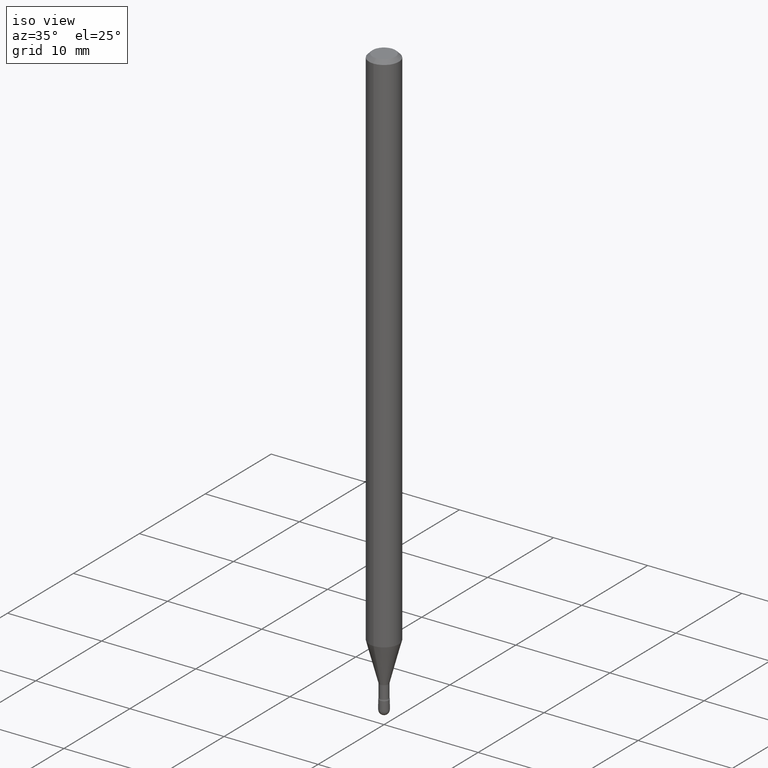
[diagram: clean part render]
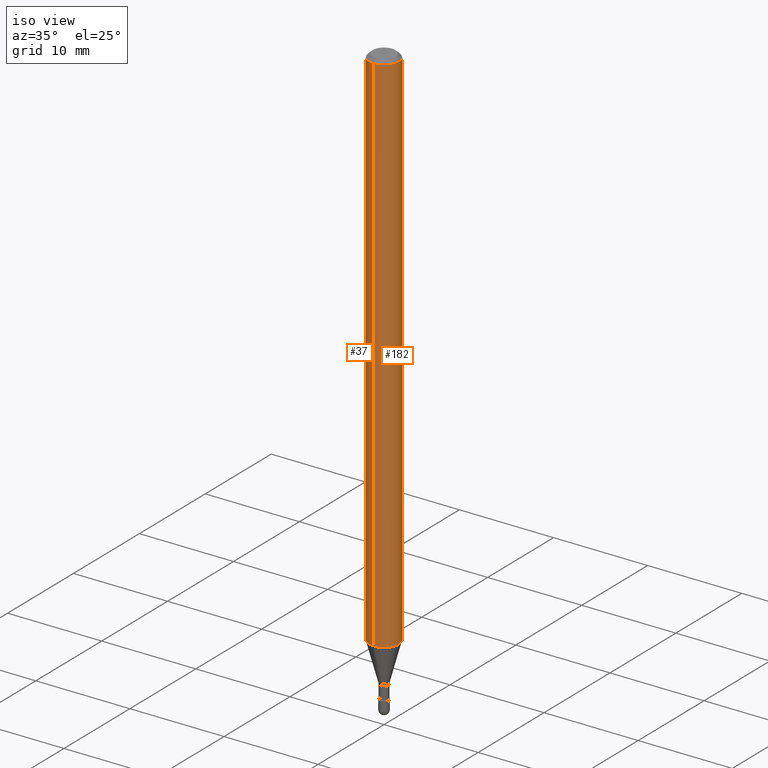
[diagram: same view with one multi-face feature highlighted, each face labeled with its STEP entity id]
A machine part, iso view. The highlighted faces form ONE feature: a constant-radius fillet chain: 2 tangent blend faces with common blend radius 1.5875 mm. The faces share edges in the B-rep.
Their STEP definitions:
[1] entity #37 (Cylinder):
#9 = LINE ( 'NONE', #369, #323 ) ;
#20 = DIRECTION ( 'NONE',  ( -6.982962677686265922E-15, -1.000000000000000000, 3.491545961467180748E-15 ) ) ;
#25 = DIRECTION ( 'NONE',  ( -2.445423680447958986E-29, 3.491545961467181142E-15, 1.000000000000000000 ) ) ;
#31 = ORIENTED_EDGE ( 'NONE', *, *, #322, .F. ) ;
#35 = ORIENTED_EDGE ( 'NONE', *, *, #446, .T. ) ;
#37 = ADVANCED_FACE ( 'NONE', ( #289 ), #422, .T. ) ;
#51 = EDGE_LOOP ( 'NONE', ( #31, #35, #122, #240 ) ) ;
#60 = AXIS2_PLACEMENT_3D ( 'NONE', #390, #428, #217 ) ;
#68 = DIRECTION ( 'NONE',  ( -2.445423680447958986E-29, 3.491545961467181142E-15, 1.000000000000000000 ) ) ;
#104 = EDGE_CURVE ( 'NONE', #432, #380, #9, .T. ) ;
#122 = ORIENTED_EDGE ( 'NONE', *, *, #104, .T. ) ;
#143 = EDGE_CURVE ( 'NONE', #383, #380, #450, .T. ) ;
#150 = CARTESIAN_POINT ( 'NONE',  ( 3.668135520671958886E-31, -5.237318942200801172E-17, -0.01500000000000008271 ) ) ;
#166 = CARTESIAN_POINT ( 'NONE',  ( -4.364351673553912750E-16, -0.06250000000000005551, -0.01499999999999986587 ) ) ;
#217 = DIRECTION ( 'NONE',  ( -6.982962677686265922E-15, -1.000000000000000000, 4.370956789862821150E-15 ) ) ;
#240 = ORIENTED_EDGE ( 'NONE', *, *, #143, .F. ) ;
#241 = LINE ( 'NONE', #376, #473 ) ;
#265 = AXIS2_PLACEMENT_3D ( 'NONE', #293, #25, #20 ) ;
#279 = DIRECTION ( 'NONE',  ( -2.445423680447958986E-29, 3.491545961467181142E-15, 1.000000000000000000 ) ) ;
#289 = FACE_OUTER_BOUND ( 'NONE', #51, .T. ) ;
#293 = CARTESIAN_POINT ( 'NONE',  ( -1.169113584055446105E-44, 1.669184350826100908E-30, 4.780733988912460139E-16 ) ) ;
#322 = EDGE_CURVE ( 'NONE', #397, #383, #241, .T. ) ;
#323 = VECTOR ( 'NONE', #279, 39.37007874015748143 ) ;
#344 = CARTESIAN_POINT ( 'NONE',  ( 4.440892098501171462E-16, 0.06249999999999995143, -0.01500000000000030129 ) ) ;
#350 = DIRECTION ( 'NONE',  ( -2.445423680447958986E-29, 3.491545961467181142E-15, 1.000000000000000000 ) ) ;
#368 = CIRCLE ( 'NONE', #60, 0.06250000000000000000 ) ;
#369 = CARTESIAN_POINT ( 'NONE',  ( -4.364351673553916201E-16, -0.06250000000000000000, 6.962950214829448106E-16 ) ) ;
#376 = CARTESIAN_POINT ( 'NONE',  ( 4.440892098500625669E-16, 0.06250000000000000000, 2.598517762995472172E-16 ) ) ;
#380 = VERTEX_POINT ( 'NONE', #166 ) ;
#383 = VERTEX_POINT ( 'NONE', #344 ) ;
#390 = CARTESIAN_POINT ( 'NONE',  ( 5.421282694548172872E-29, -7.740440991662511567E-15, -2.216909379709240291 ) ) ;
#397 = VERTEX_POINT ( 'NONE', #513 ) ;
#422 = CYLINDRICAL_SURFACE ( 'NONE', #265, 0.06250000000000000000 ) ;
#428 = DIRECTION ( 'NONE',  ( -2.445423680447958986E-29, 3.491545961467181142E-15, 1.000000000000000000 ) ) ;
#432 = VERTEX_POINT ( 'NONE', #436 ) ;
#436 = CARTESIAN_POINT ( 'NONE',  ( -4.364351673553375831E-16, -0.06250000000000775768, -2.216909379709239847 ) ) ;
#446 = EDGE_CURVE ( 'NONE', #397, #432, #368, .T. ) ;
#450 = CIRCLE ( 'NONE', #551, 0.06250000000000000000 ) ;
#453 = DIRECTION ( 'NONE',  ( -6.982962677686265922E-15, -1.000000000000000000, 3.483106191921935554E-15 ) ) ;
#473 = VECTOR ( 'NONE', #350, 39.37007874015748143 ) ;
#513 = CARTESIAN_POINT ( 'NONE',  ( 4.440892098501165545E-16, 0.06249999999999224232, -2.216909379709240735 ) ) ;
#551 = AXIS2_PLACEMENT_3D ( 'NONE', #150, #68, #453 ) ;
[2] entity #182 (Cylinder):
#9 = LINE ( 'NONE', #369, #323 ) ;
#22 = CARTESIAN_POINT ( 'NONE',  ( -1.169113584055446105E-44, 1.669184350826100908E-30, 4.780733988912460139E-16 ) ) ;
#36 = CARTESIAN_POINT ( 'NONE',  ( 3.668135520671958886E-31, -5.237318942200801172E-17, -0.01500000000000008271 ) ) ;
#49 = ORIENTED_EDGE ( 'NONE', *, *, #357, .T. ) ;
#104 = EDGE_CURVE ( 'NONE', #432, #380, #9, .T. ) ;
#115 = AXIS2_PLACEMENT_3D ( 'NONE', #506, #306, #444 ) ;
#131 = CIRCLE ( 'NONE', #203, 0.06250000000000000000 ) ;
#139 = AXIS2_PLACEMENT_3D ( 'NONE', #22, #499, #452 ) ;
#154 = ORIENTED_EDGE ( 'NONE', *, *, #322, .T. ) ;
#165 = ORIENTED_EDGE ( 'NONE', *, *, #104, .F. ) ;
#166 = CARTESIAN_POINT ( 'NONE',  ( -4.364351673553912750E-16, -0.06250000000000005551, -0.01499999999999986587 ) ) ;
#182 = ADVANCED_FACE ( 'NONE', ( #356 ), #451, .T. ) ;
#202 = EDGE_LOOP ( 'NONE', ( #49, #154, #512, #165 ) ) ;
#203 = AXIS2_PLACEMENT_3D ( 'NONE', #36, #209, #563 ) ;
#209 = DIRECTION ( 'NONE',  ( -2.445423680447958986E-29, 3.491545961467181142E-15, 1.000000000000000000 ) ) ;
#241 = LINE ( 'NONE', #376, #473 ) ;
#279 = DIRECTION ( 'NONE',  ( -2.445423680447958986E-29, 3.491545961467181142E-15, 1.000000000000000000 ) ) ;
#306 = DIRECTION ( 'NONE',  ( -2.445423680447958986E-29, 3.491545961467181142E-15, 1.000000000000000000 ) ) ;
#322 = EDGE_CURVE ( 'NONE', #397, #383, #241, .T. ) ;
#323 = VECTOR ( 'NONE', #279, 39.37007874015748143 ) ;
#344 = CARTESIAN_POINT ( 'NONE',  ( 4.440892098501171462E-16, 0.06249999999999995143, -0.01500000000000030129 ) ) ;
#350 = DIRECTION ( 'NONE',  ( -2.445423680447958986E-29, 3.491545961467181142E-15, 1.000000000000000000 ) ) ;
#356 = FACE_OUTER_BOUND ( 'NONE', #202, .T. ) ;
#357 = EDGE_CURVE ( 'NONE', #432, #397, #529, .T. ) ;
#369 = CARTESIAN_POINT ( 'NONE',  ( -4.364351673553916201E-16, -0.06250000000000000000, 6.962950214829448106E-16 ) ) ;
#376 = CARTESIAN_POINT ( 'NONE',  ( 4.440892098500625669E-16, 0.06250000000000000000, 2.598517762995472172E-16 ) ) ;
#380 = VERTEX_POINT ( 'NONE', #166 ) ;
#383 = VERTEX_POINT ( 'NONE', #344 ) ;
#397 = VERTEX_POINT ( 'NONE', #513 ) ;
#432 = VERTEX_POINT ( 'NONE', #436 ) ;
#436 = CARTESIAN_POINT ( 'NONE',  ( -4.364351673553375831E-16, -0.06250000000000775768, -2.216909379709239847 ) ) ;
#444 = DIRECTION ( 'NONE',  ( -6.982962677686265922E-15, -1.000000000000000000, 4.370956789862821150E-15 ) ) ;
#451 = CYLINDRICAL_SURFACE ( 'NONE', #139, 0.06250000000000000000 ) ;
#452 = DIRECTION ( 'NONE',  ( -6.982962677686265922E-15, -1.000000000000000000, 3.491545961467180748E-15 ) ) ;
#473 = VECTOR ( 'NONE', #350, 39.37007874015748143 ) ;
#481 = EDGE_CURVE ( 'NONE', #380, #383, #131, .T. ) ;
#499 = DIRECTION ( 'NONE',  ( -2.445423680447958986E-29, 3.491545961467181142E-15, 1.000000000000000000 ) ) ;
#506 = CARTESIAN_POINT ( 'NONE',  ( 5.421282694548172872E-29, -7.740440991662511567E-15, -2.216909379709240291 ) ) ;
#512 = ORIENTED_EDGE ( 'NONE', *, *, #481, .F. ) ;
#513 = CARTESIAN_POINT ( 'NONE',  ( 4.440892098501165545E-16, 0.06249999999999224232, -2.216909379709240735 ) ) ;
#529 = CIRCLE ( 'NONE', #115, 0.06250000000000000000 ) ;
#563 = DIRECTION ( 'NONE',  ( -6.982962677686265922E-15, -1.000000000000000000, 3.483106191921935554E-15 ) ) ;